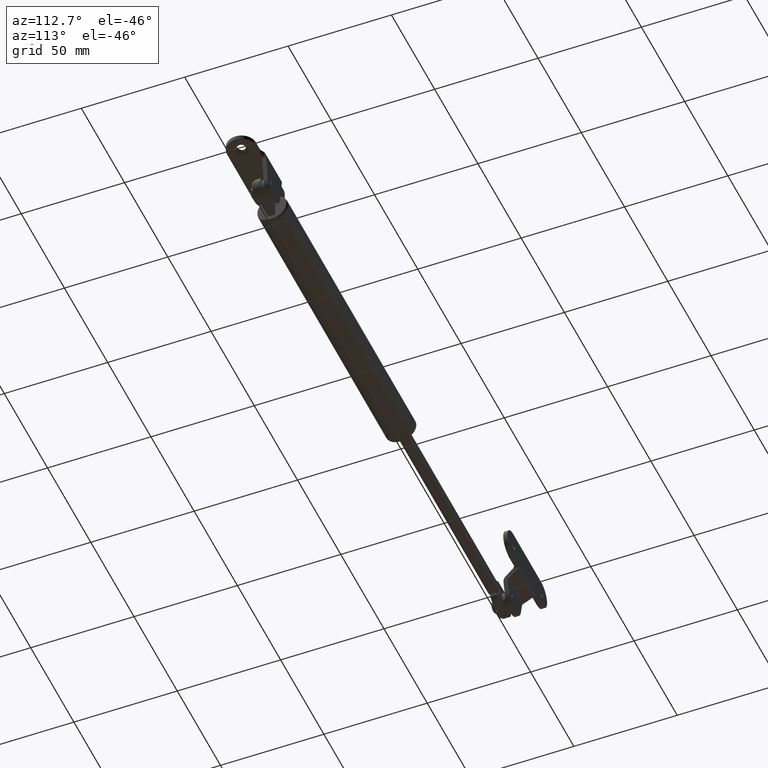
[diagram: clean part render]
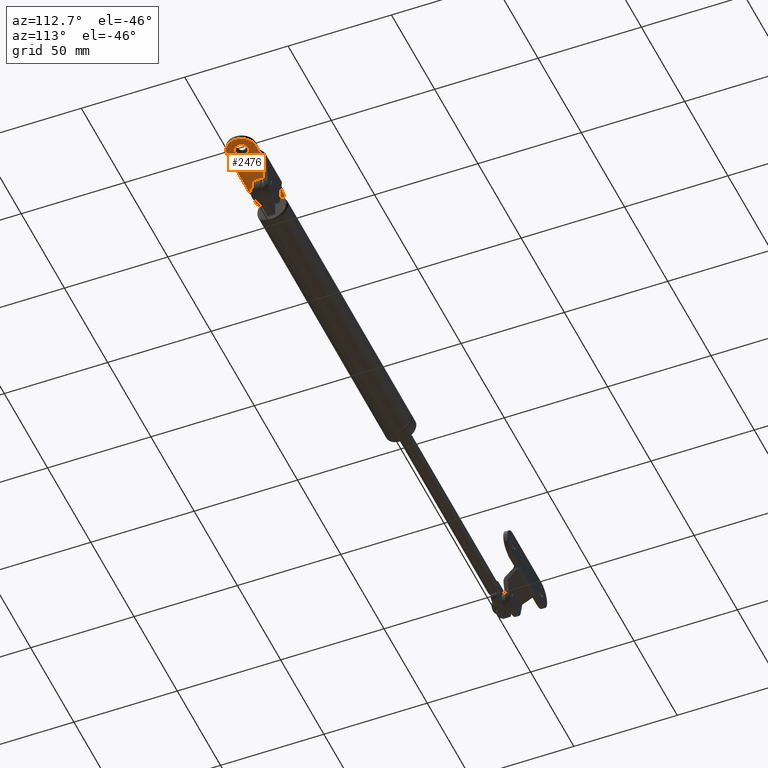
[diagram: same view with one face highlighted and labeled with its STEP entity id]
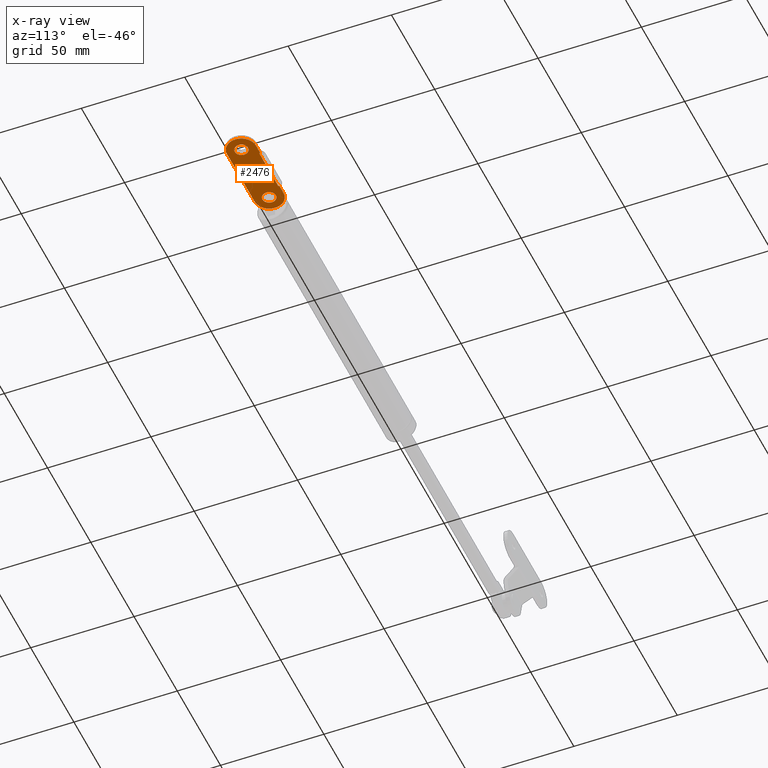
[diagram: x-ray of the same camera — body ghosted, the highlighted face saturated]
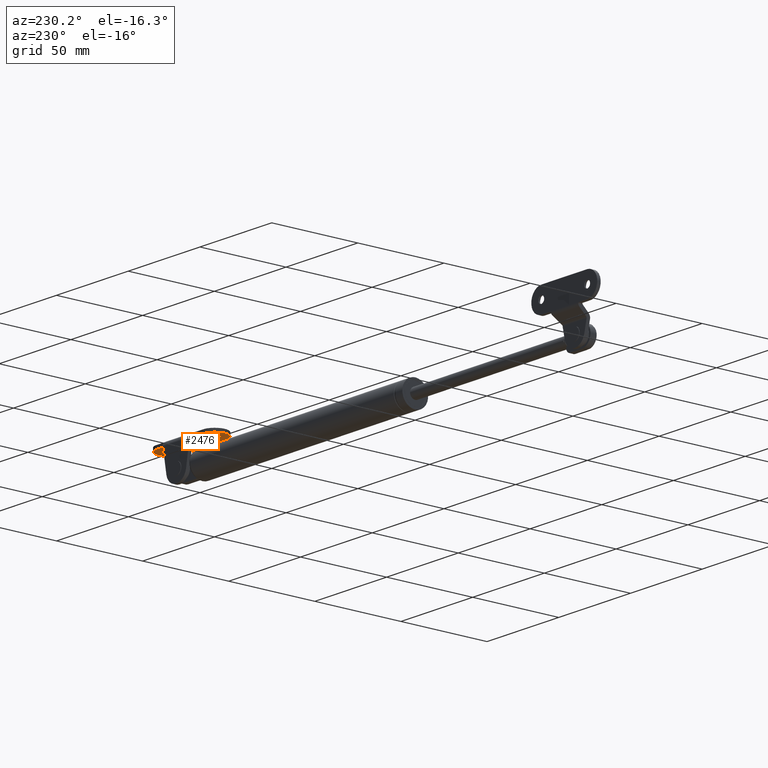
[diagram: same view with one face highlighted and labeled with its STEP entity id]
A machine part, auxiliary view. The second image highlights one B-rep face of the part: STEP entity #2476.
The next image is the same camera in x-ray: the body ghosted, the highlighted face saturated — about 0% of this face is hidden behind the body in this view.
A second angle (auxiliary view) of the same face is appended — the face is thin or edge-on in the first view.
In plain terms, the highlighted planar face has unit normal (-0, 0, -1).
Its self-contained STEP definition (entity closure, byte-faithful):
#41=ELLIPSE('',#2702,2.03079133398187,2.);
#42=ELLIPSE('',#2705,2.03079133398187,2.);
#140=LINE('',#4254,#282);
#146=LINE('',#4286,#288);
#147=LINE('',#4291,#289);
#148=LINE('',#4295,#290);
#149=LINE('',#4299,#291);
#150=LINE('',#4301,#292);
#282=VECTOR('',#3199,0.530324468562207);
#288=VECTOR('',#3215,0.530324468562207);
#289=VECTOR('',#3220,4.57150604349327);
#290=VECTOR('',#3223,32.);
#291=VECTOR('',#3226,4.57150604349326);
#292=VECTOR('',#3229,22.1523931580632);
#411=PLANE('',#2701);
#547=FACE_BOUND('',#826,.T.);
#548=FACE_BOUND('',#827,.T.);
#634=FACE_OUTER_BOUND('',#825,.T.);
#825=EDGE_LOOP('',(#1918,#1919,#1920,#1921,#1922,#1923,#1924,#1925,#1926,
#1927));
#826=EDGE_LOOP('',(#1928));
#827=EDGE_LOOP('',(#1929));
#1013=CIRCLE('',#2703,7.);
#1014=CIRCLE('',#2704,7.);
#1015=CIRCLE('',#2706,3.25);
#1016=CIRCLE('',#2707,3.25);
#1201=VERTEX_POINT('',#4250);
#1203=VERTEX_POINT('',#4253);
#1208=VERTEX_POINT('',#4272);
#1212=VERTEX_POINT('',#4279);
#1213=VERTEX_POINT('',#4288);
#1214=VERTEX_POINT('',#4290);
#1215=VERTEX_POINT('',#4292);
#1216=VERTEX_POINT('',#4294);
#1217=VERTEX_POINT('',#4296);
#1218=VERTEX_POINT('',#4298);
#1219=VERTEX_POINT('',#4302);
#1220=VERTEX_POINT('',#4304);
#1464=EDGE_CURVE('',#1201,#1203,#140,.T.);
#1475=EDGE_CURVE('',#1212,#1208,#146,.T.);
#1476=EDGE_CURVE('',#1213,#1201,#41,.T.);
#1477=EDGE_CURVE('',#1213,#1214,#147,.T.);
#1478=EDGE_CURVE('',#1214,#1215,#1013,.T.);
#1479=EDGE_CURVE('',#1215,#1216,#148,.T.);
#1480=EDGE_CURVE('',#1216,#1217,#1014,.T.);
#1481=EDGE_CURVE('',#1217,#1218,#149,.T.);
#1482=EDGE_CURVE('',#1208,#1218,#42,.T.);
#1483=EDGE_CURVE('',#1203,#1212,#150,.T.);
#1484=EDGE_CURVE('',#1219,#1219,#1015,.T.);
#1485=EDGE_CURVE('',#1220,#1220,#1016,.T.);
#1918=ORIENTED_EDGE('',*,*,#1464,.F.);
#1919=ORIENTED_EDGE('',*,*,#1476,.F.);
#1920=ORIENTED_EDGE('',*,*,#1477,.T.);
#1921=ORIENTED_EDGE('',*,*,#1478,.T.);
#1922=ORIENTED_EDGE('',*,*,#1479,.T.);
#1923=ORIENTED_EDGE('',*,*,#1480,.T.);
#1924=ORIENTED_EDGE('',*,*,#1481,.T.);
#1925=ORIENTED_EDGE('',*,*,#1482,.F.);
#1926=ORIENTED_EDGE('',*,*,#1475,.F.);
#1927=ORIENTED_EDGE('',*,*,#1483,.F.);
#1928=ORIENTED_EDGE('',*,*,#1484,.T.);
#1929=ORIENTED_EDGE('',*,*,#1485,.T.);
#2476=ADVANCED_FACE('',(#634,#547,#548),#411,.T.);
#2701=AXIS2_PLACEMENT_3D('',#4287,#3216,#3217);
#2702=AXIS2_PLACEMENT_3D('',#4289,#3218,#3219);
#2703=AXIS2_PLACEMENT_3D('',#4293,#3221,#3222);
#2704=AXIS2_PLACEMENT_3D('',#4297,#3224,#3225);
#2705=AXIS2_PLACEMENT_3D('',#4300,#3227,#3228);
#2706=AXIS2_PLACEMENT_3D('',#4303,#3230,#3231);
#2707=AXIS2_PLACEMENT_3D('',#4305,#3232,#3233);
#3199=DIRECTION('',(0.,-1.,0.));
#3215=DIRECTION('',(0.,1.,0.));
#3216=DIRECTION('center_axis',(0.,0.,1.));
#3217=DIRECTION('ref_axis',(1.,0.,0.));
#3218=DIRECTION('center_axis',(0.,0.,1.));
#3219=DIRECTION('ref_axis',(1.,-5.46694781510757E-16,0.));
#3220=DIRECTION('',(-1.,0.,0.));
#3221=DIRECTION('center_axis',(0.,0.,1.));
#3222=DIRECTION('ref_axis',(0.,1.,0.));
#3223=DIRECTION('',(1.,-3.46944695195361E-17,0.));
#3224=DIRECTION('center_axis',(0.,0.,1.));
#3225=DIRECTION('ref_axis',(0.,-1.,0.));
#3226=DIRECTION('',(-1.,0.,0.));
#3227=DIRECTION('center_axis',(0.,0.,1.));
#3228=DIRECTION('ref_axis',(-1.,7.38037955039522E-15,0.));
#3229=DIRECTION('',(1.,0.,0.));
#3230=DIRECTION('center_axis',(0.,0.,-1.));
#3231=DIRECTION('ref_axis',(1.,0.,0.));
#3232=DIRECTION('center_axis',(0.,0.,-1.));
#3233=DIRECTION('ref_axis',(1.,0.,0.));
#4250=CARTESIAN_POINT('',(-11.0761965790316,7.03032446856221,2.));
#4253=CARTESIAN_POINT('',(-11.0761965790316,6.5,2.));
#4254=CARTESIAN_POINT('',(-11.0761965790316,4.5,2.));
#4272=CARTESIAN_POINT('',(11.0761965790316,7.03032446856221,2.));
#4279=CARTESIAN_POINT('',(11.0761965790316,6.5,2.));
#4286=CARTESIAN_POINT('',(11.0761965790316,4.5,2.));
#4287=CARTESIAN_POINT('Origin',(0.,1.11756870305741E-15,2.));
#4288=CARTESIAN_POINT('',(-11.4284939565067,7.,2.));
#4289=CARTESIAN_POINT('Origin',(-11.4284939565067,9.,2.));
#4290=CARTESIAN_POINT('',(-16.,7.,2.));
#4291=CARTESIAN_POINT('',(16.,7.,2.));
#4292=CARTESIAN_POINT('',(-16.,-7.,2.));
#4293=CARTESIAN_POINT('Origin',(-16.,0.,2.));
#4294=CARTESIAN_POINT('',(16.,-7.,2.));
#4295=CARTESIAN_POINT('',(-16.,-7.,2.));
#4296=CARTESIAN_POINT('',(16.,7.,2.));
#4297=CARTESIAN_POINT('Origin',(16.,0.,2.));
#4298=CARTESIAN_POINT('',(11.4284939565067,7.,2.));
#4299=CARTESIAN_POINT('',(16.,7.,2.));
#4300=CARTESIAN_POINT('Origin',(11.4284939565067,9.,2.));
#4301=CARTESIAN_POINT('',(1.00354373465368E-15,6.5,2.));
#4302=CARTESIAN_POINT('',(19.25,5.8783046359073E-15,2.));
#4303=CARTESIAN_POINT('Origin',(16.,5.8783046359073E-15,2.));
#4304=CARTESIAN_POINT('',(-12.75,0.,2.));
#4305=CARTESIAN_POINT('Origin',(-16.,0.,2.));